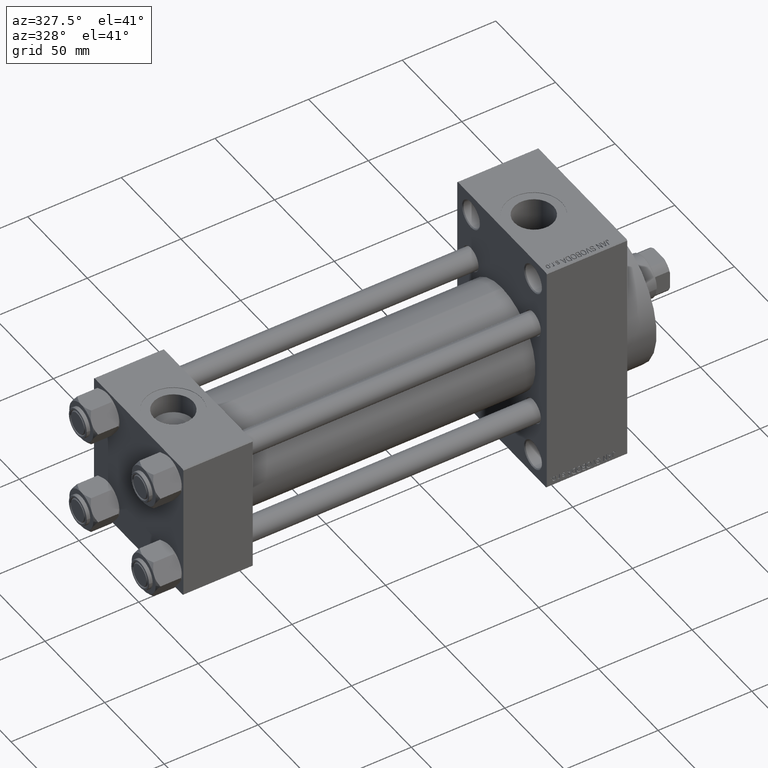
[diagram: clean part render]
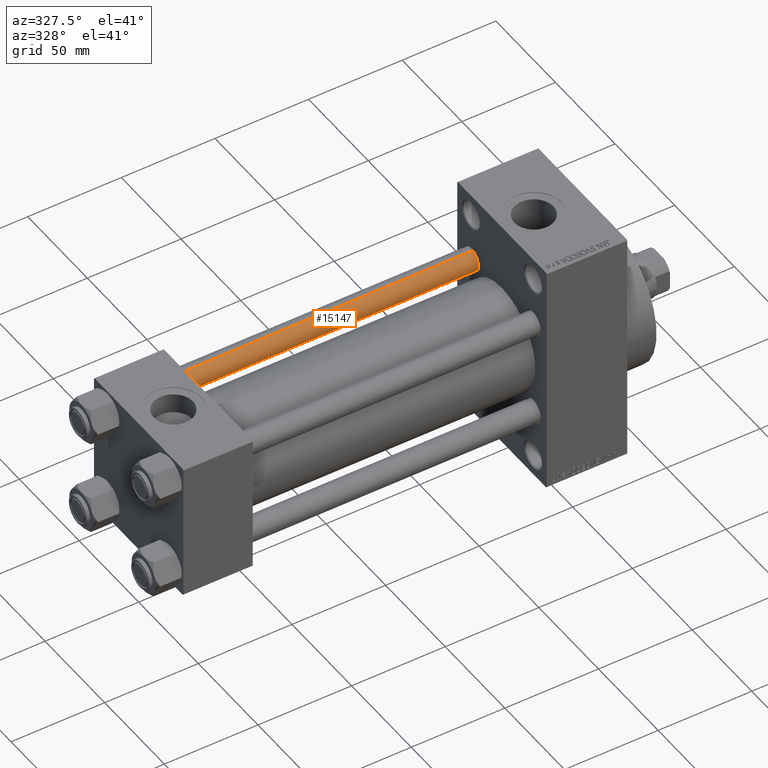
[diagram: same view with one face highlighted and labeled with its STEP entity id]
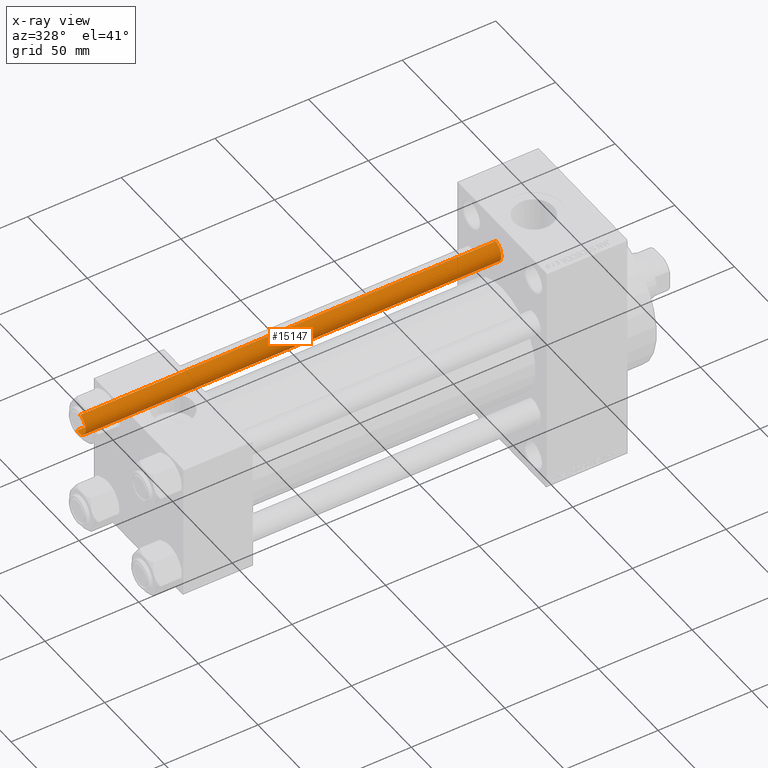
[diagram: x-ray of the same camera — body ghosted, the highlighted face saturated]
A machine part, auxiliary view. The second image highlights one B-rep face of the part: STEP entity #15147.
The next image is the same camera in x-ray: the body ghosted, the highlighted face saturated — about 0% of this face is hidden behind the body in this view.
In plain terms, the highlighted cylindrical surface (edge-blend (fillet) strip) has radius 6 mm, axis along (-1, -0, 0).
Its self-contained STEP definition (entity closure, byte-faithful):
#1391 = EDGE_CURVE ( 'NONE', #26655, #4503, #42162, .T. ) ;
#2025 = DIRECTION ( 'NONE',  ( -0.000000000000000000, -0.000000000000000000, 1.000000000000000000 ) ) ;
#2427 = CARTESIAN_POINT ( 'NONE',  ( 6.000000000000000888, 7.347880794884119736E-16, 0.5000000000001947331 ) ) ;
#4252 = VERTEX_POINT ( 'NONE', #16590 ) ;
#4503 = VERTEX_POINT ( 'NONE', #2427 ) ;
#6553 = EDGE_CURVE ( 'NONE', #39660, #4252, #39102, .T. ) ;
#7581 = CARTESIAN_POINT ( 'NONE',  ( 0.000000000000000000, 0.000000000000000000, 222.5000000000000853 ) ) ;
#8548 = EDGE_CURVE ( 'NONE', #26655, #39660, #46140, .T. ) ;
#8574 = VECTOR ( 'NONE', #38341, 1000.000000000000000 ) ;
#9242 = CARTESIAN_POINT ( 'NONE',  ( 6.000000000000000888, 7.347880794884119736E-16, 223.0000000000000000 ) ) ;
#12331 = ORIENTED_EDGE ( 'NONE', *, *, #14494, .T. ) ;
#13601 = DIRECTION ( 'NONE',  ( -0.000000000000000000, -0.000000000000000000, -1.000000000000000000 ) ) ;
#14494 = EDGE_CURVE ( 'NONE', #4252, #4503, #38597, .T. ) ;
#14710 = ORIENTED_EDGE ( 'NONE', *, *, #8548, .T. ) ;
#14823 = VECTOR ( 'NONE', #13601, 1000.000000000000000 ) ;
#15147 = ADVANCED_FACE ( 'NONE', ( #45858 ), #24365, .T. ) ;
#16590 = CARTESIAN_POINT ( 'NONE',  ( -6.000000000000000888, 0.000000000000000000, 0.5000000000001947331 ) ) ;
#16980 = CARTESIAN_POINT ( 'NONE',  ( 0.000000000000000000, 0.000000000000000000, 223.0000000000000000 ) ) ;
#17818 = CARTESIAN_POINT ( 'NONE',  ( -6.000000000000000888, 0.000000000000000000, 222.5000000000000853 ) ) ;
#19702 = DIRECTION ( 'NONE',  ( 1.000000000000000000, 0.000000000000000000, 0.000000000000000000 ) ) ;
#21421 = DIRECTION ( 'NONE',  ( 0.000000000000000000, 0.000000000000000000, -1.000000000000000000 ) ) ;
#21901 = DIRECTION ( 'NONE',  ( 1.000000000000000000, 0.000000000000000000, 0.000000000000000000 ) ) ;
#24365 = CYLINDRICAL_SURFACE ( 'NONE', #46243, 6.000000000000000888 ) ;
#26655 = VERTEX_POINT ( 'NONE', #40314 ) ;
#27836 = AXIS2_PLACEMENT_3D ( 'NONE', #7581, #21421, #21901 ) ;
#34638 = DIRECTION ( 'NONE',  ( -1.000000000000000000, 0.000000000000000000, 0.000000000000000000 ) ) ;
#36158 = ORIENTED_EDGE ( 'NONE', *, *, #6553, .T. ) ;
#38341 = DIRECTION ( 'NONE',  ( -0.000000000000000000, -0.000000000000000000, -1.000000000000000000 ) ) ;
#38597 = CIRCLE ( 'NONE', #43929, 6.000000000000000888 ) ;
#38867 = CARTESIAN_POINT ( 'NONE',  ( -6.000000000000000888, 0.000000000000000000, 223.0000000000000000 ) ) ;
#39102 = LINE ( 'NONE', #38867, #14823 ) ;
#39660 = VERTEX_POINT ( 'NONE', #17818 ) ;
#40314 = CARTESIAN_POINT ( 'NONE',  ( 6.000000000000000888, 7.347880794884119736E-16, 222.5000000000000853 ) ) ;
#41909 = ORIENTED_EDGE ( 'NONE', *, *, #1391, .F. ) ;
#42038 = DIRECTION ( 'NONE',  ( -0.000000000000000000, -0.000000000000000000, -1.000000000000000000 ) ) ;
#42162 = LINE ( 'NONE', #9242, #8574 ) ;
#43929 = AXIS2_PLACEMENT_3D ( 'NONE', #45701, #2025, #19702 ) ;
#44650 = EDGE_LOOP ( 'NONE', ( #41909, #14710, #36158, #12331 ) ) ;
#45701 = CARTESIAN_POINT ( 'NONE',  ( 0.000000000000000000, 0.000000000000000000, 0.5000000000001947331 ) ) ;
#45858 = FACE_OUTER_BOUND ( 'NONE', #44650, .T. ) ;
#46140 = CIRCLE ( 'NONE', #27836, 6.000000000000000888 ) ;
#46243 = AXIS2_PLACEMENT_3D ( 'NONE', #16980, #42038, #34638 ) ;